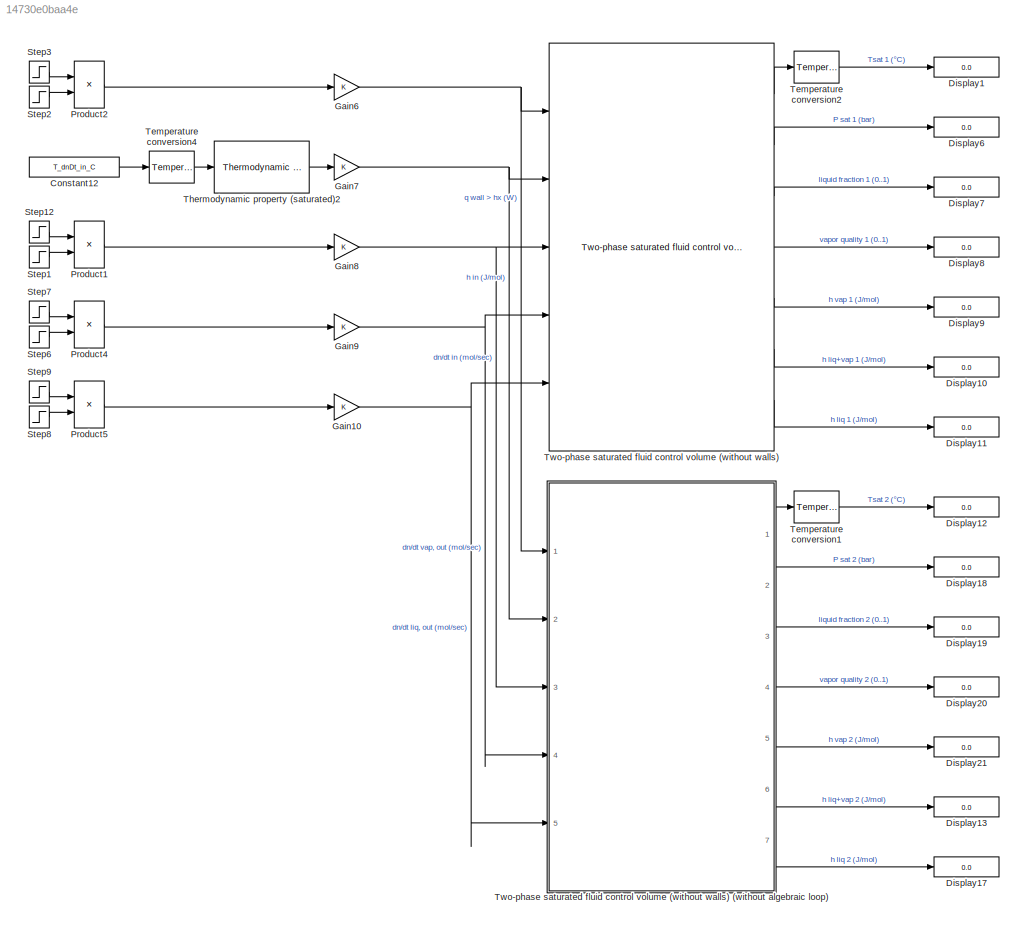
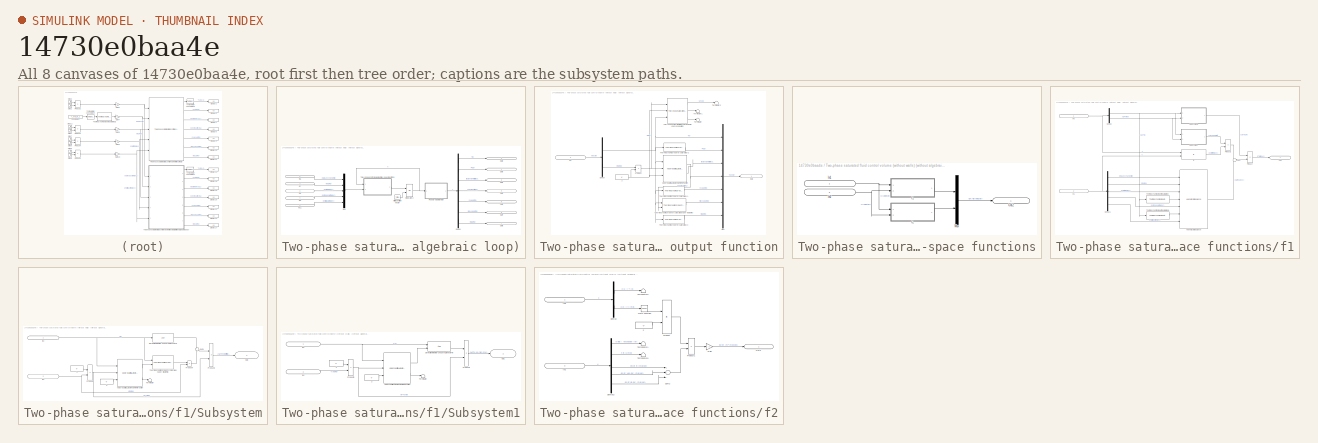
[diagram: thumbnail index - all 8 canvases of the model, root first then tree order]
MODEL slx_14730e0baa4e
KIND model
CONFIG AbsTol = auto
CONFIG EnableMultiTasking = off
CONFIG FixedStep = auto
CONFIG MaxStep = 0.1
CONFIG MinStep = auto
CONFIG RelTol = 5e-6
CONFIG SampleTimeConstraint = Unconstrained
CONFIG Solver = ode23tb
CONFIG SolverName = ode23tb
CONFIG StartTime = 0.0
CONFIG StopTime = tEndSimul
BLOCK [Constant] Constant12
  Value = T_dnDt_in_C
BLOCK [Display] Display1
  Decimation = 1
  Ports = [1]
BLOCK [Display] Display10
  Decimation = 1
  Ports = [1]
BLOCK [Display] Display11
  Decimation = 1
  Ports = [1]
BLOCK [Display] Display12
  Decimation = 1
  Ports = [1]
BLOCK [Display] Display13
  Decimation = 1
  Ports = [1]
BLOCK [Display] Display17
  Decimation = 1
  Ports = [1]
BLOCK [Display] Display18
  Decimation = 1
  Ports = [1]
BLOCK [Display] Display19
  Decimation = 1
  Ports = [1]
BLOCK [Display] Display20
  Decimation = 1
  Ports = [1]
BLOCK [Display] Display21
  Decimation = 1
  Ports = [1]
BLOCK [Display] Display6
  Decimation = 1
  Ports = [1]
BLOCK [Display] Display7
  Decimation = 1
  Ports = [1]
BLOCK [Display] Display8
  Decimation = 1
  Ports = [1]
BLOCK [Display] Display9
  Decimation = 1
  Ports = [1]
BLOCK [Gain] Gain10
  OutDataTypeStr = Inherit: Inherit via internal rule
  ParamDataTypeStr = Inherit: Inherit via internal rule
  SaturateOnIntegerOverflow = off
BLOCK [Gain] Gain6
  OutDataTypeStr = Inherit: Inherit via internal rule
  ParamDataTypeStr = Inherit: Inherit via internal rule
  SaturateOnIntegerOverflow = off
BLOCK [Gain] Gain7
  OutDataTypeStr = Inherit: Inherit via internal rule
  ParamDataTypeStr = Inherit: Inherit via internal rule
  SaturateOnIntegerOverflow = off
BLOCK [Gain] Gain8
  OutDataTypeStr = Inherit: Inherit via internal rule
  ParamDataTypeStr = Inherit: Inherit via internal rule
  SaturateOnIntegerOverflow = off
BLOCK [Gain] Gain9
  OutDataTypeStr = Inherit: Inherit via internal rule
  ParamDataTypeStr = Inherit: Inherit via internal rule
  SaturateOnIntegerOverflow = off
BLOCK [Product] Product1
  InputSameDT = off
  OutDataTypeStr = Inherit: Inherit via internal rule
  Ports = [2, 1]
  RndMeth = Floor
  SaturateOnIntegerOverflow = off
BLOCK [Product] Product2
  InputSameDT = off
  OutDataTypeStr = Inherit: Inherit via internal rule
  Ports = [2, 1]
  RndMeth = Floor
  SaturateOnIntegerOverflow = off
BLOCK [Product] Product4
  InputSameDT = off
  OutDataTypeStr = Inherit: Inherit via internal rule
  Ports = [2, 1]
  RndMeth = Floor
  SaturateOnIntegerOverflow = off
BLOCK [Product] Product5
  InputSameDT = off
  OutDataTypeStr = Inherit: Inherit via internal rule
  Ports = [2, 1]
  RndMeth = Floor
  SaturateOnIntegerOverflow = off
BLOCK [Step] Step1
  After = 0
  Before = 1
  SampleTime = 0
  Time = tEnd_dnDt_in
BLOCK [Step] Step12
  After = dnDt_in
  SampleTime = 0
  Time = tStart_dnDt_in
BLOCK [Step] Step2
  After = 0
  Before = 1
  SampleTime = 0
  Time = tEnd_q
BLOCK [Step] Step3
  After = q
  SampleTime = 0
  Time = tStart_q
BLOCK [Step] Step6
  After = 0
  Before = 1
  SampleTime = 0
  Time = tEnd_dnDt_out_vap
BLOCK [Step] Step7
  After = dnDt_out_vap
  SampleTime = 0
  Time = tStart_dnDt_out_vap
BLOCK [Step] Step8
  After = 0
  Before = 1
  SampleTime = 0
  Time = tEnd_dnDt_out_liq
BLOCK [Step] Step9
  After = dnDt_out_liq
  SampleTime = 0
  Time = tStart_dnDt_out_liq
BLOCK [Reference] Temperature conversion1  REF=thermochemical/Conversions/Temperature  (lib defined in slx_f9e0643dc704)
conversion
  Ports = [1, 1]
  SourceBlock = thermochemical/Conversions/Temperature\nconversion
  SourceProductName = @ Thermochemical
  SourceType = convert_temperature
BLOCK [Reference] Temperature conversion2  REF=thermochemical/Conversions/Temperature  (lib defined in slx_f9e0643dc704)
conversion
  Ports = [1, 1]
  SourceBlock = thermochemical/Conversions/Temperature\nconversion
  SourceProductName = @ Thermochemical
  SourceType = convert_temperature
BLOCK [Reference] Temperature conversion4  REF=thermochemical/Conversions/Temperature  (lib defined in slx_f9e0643dc704)
conversion
  Ports = [1, 1]
  SourceBlock = thermochemical/Conversions/Temperature\nconversion
  SourceProductName = @ Thermochemical
  SourceType = convert_temperature
BLOCK [Reference] Thermodynamic property (saturated)2  REF=thermochemical/Thermodynamic fluid properties/Thermodynamic   (lib defined in slx_f9e0643dc704)
property (saturated)
  Ports = [1, 1]
  SourceBlock = thermochemical/Thermodynamic fluid properties/Thermodynamic \nproperty (saturated)
  SourceProductName = @ Thermochemical
  SourceType = thermodynamic_properties_saturated
BLOCK [Reference] Two-phase saturated fluid control volume (without walls)  REF=thermochemical/Control volumes/Two-phase saturated fluid  (lib defined in slx_f9e0643dc704)
control volume (without walls)
  Ports = [5, 7]
  SourceBlock = thermochemical/Control volumes/Two-phase saturated fluid\ncontrol volume (without walls)
  SourceProductName = @ Thermochemical
  SourceType = volume_control_saturated
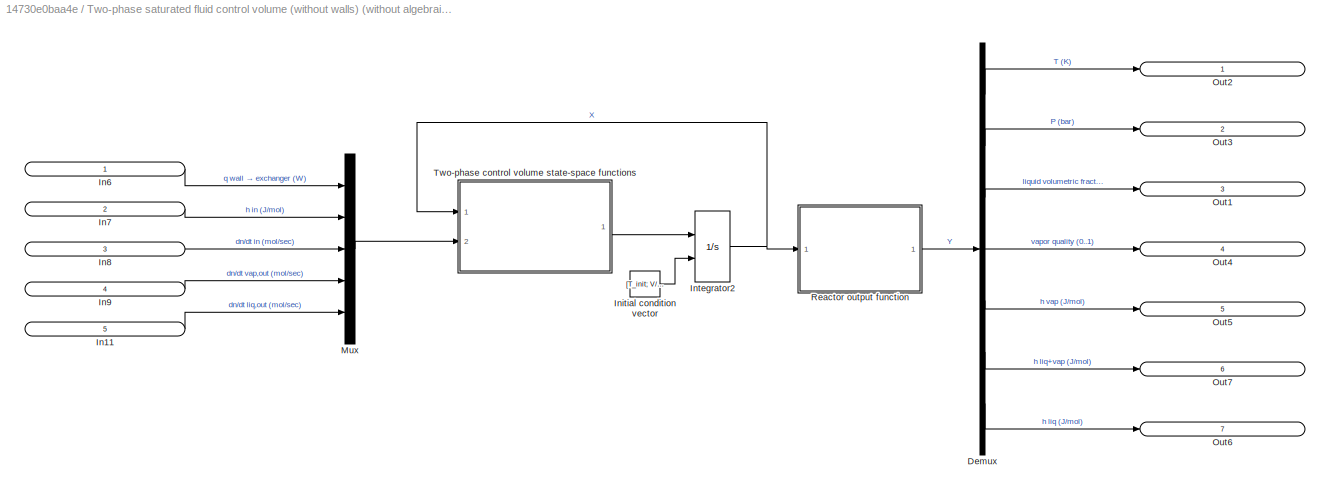
BLOCK [SubSystem] Two-phase saturated fluid control volume (without walls) (without algebraic loop)
  AncestorBlock = thermochemical/Control volumes/Two-phase saturated fluid\ncontrol volume (without walls)\n(without algebraic loop)
  Ports = [5, 7]
  RequestExecContextInheritance = off
  Variant = off
BLOCK [Demux] Two-phase saturated fluid control volume (without walls) (without algebraic loop)/Demux
  DisplayOption = bar
  Outputs = 7
  Ports = [1, 7]
BLOCK [Inport] Two-phase saturated fluid control volume (without walls) (without algebraic loop)/In11
  IconDisplay = Signal name
  Port = 5
BLOCK [Inport] Two-phase saturated fluid control volume (without walls) (without algebraic loop)/In6
  IconDisplay = Signal name
BLOCK [Inport] Two-phase saturated fluid control volume (without walls) (without algebraic loop)/In7
  IconDisplay = Signal name
  Port = 2
BLOCK [Inport] Two-phase saturated fluid control volume (without walls) (without algebraic loop)/In8
  IconDisplay = Signal name
  Port = 3
BLOCK [Inport] Two-phase saturated fluid control volume (without walls) (without algebraic loop)/In9
  IconDisplay = Signal name
  Port = 4
BLOCK [Constant] Two-phase saturated fluid control volume (without walls) (without algebraic loop)/Initial condition vector
  Value = [T_init; V/N_init]
BLOCK [Integrator] Two-phase saturated fluid control volume (without walls) (without algebraic loop)/Integrator2
  InitialConditionSource = external
  Ports = [2, 1]
BLOCK [Mux] Two-phase saturated fluid control volume (without walls) (without algebraic loop)/Mux
  DisplayOption = bar
  Inputs = 5
  Ports = [5, 1]
BLOCK [Outport] Two-phase saturated fluid control volume (without walls) (without algebraic loop)/Out1
  IconDisplay = Signal name
  Port = 3
BLOCK [Outport] Two-phase saturated fluid control volume (without walls) (without algebraic loop)/Out2
  IconDisplay = Signal name
BLOCK [Outport] Two-phase saturated fluid control volume (without walls) (without algebraic loop)/Out3
  IconDisplay = Signal name
  Port = 2
BLOCK [Outport] Two-phase saturated fluid control volume (without walls) (without algebraic loop)/Out4
  IconDisplay = Signal name
  Port = 4
BLOCK [Outport] Two-phase saturated fluid control volume (without walls) (without algebraic loop)/Out5
  IconDisplay = Signal name
  Port = 5
BLOCK [Outport] Two-phase saturated fluid control volume (without walls) (without algebraic loop)/Out6
  IconDisplay = Signal name
  Port = 7
BLOCK [Outport] Two-phase saturated fluid control volume (without walls) (without algebraic loop)/Out7
  IconDisplay = Signal name
  Port = 6
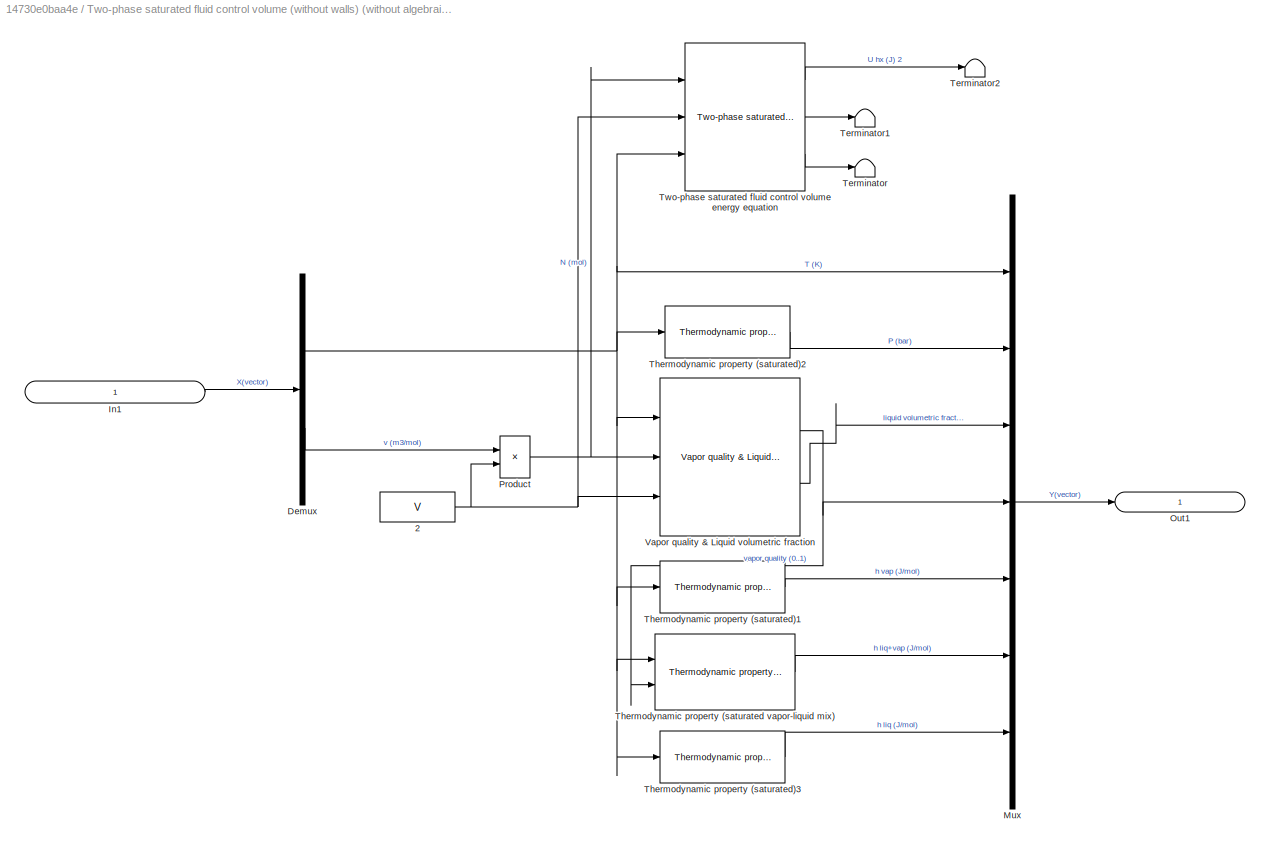
BLOCK [SubSystem] Two-phase saturated fluid control volume (without walls) (without algebraic loop)/Reactor output function
  Ports = [1, 1]
  RequestExecContextInheritance = off
  Variant = off
BLOCK [Constant] Two-phase saturated fluid control volume (without walls) (without algebraic loop)/Reactor output function/2
  Value = V
BLOCK [Demux] Two-phase saturated fluid control volume (without walls) (without algebraic loop)/Reactor output function/Demux
  DisplayOption = bar
  Outputs = 2
  Ports = [1, 2]
BLOCK [Inport] Two-phase saturated fluid control volume (without walls) (without algebraic loop)/Reactor output function/In1
  IconDisplay = Signal name
BLOCK [Mux] Two-phase saturated fluid control volume (without walls) (without algebraic loop)/Reactor output function/Mux
  DisplayOption = bar
  Inputs = 7
  Ports = [7, 1]
BLOCK [Outport] Two-phase saturated fluid control volume (without walls) (without algebraic loop)/Reactor output function/Out1
  IconDisplay = Signal name
BLOCK [Product] Two-phase saturated fluid control volume (without walls) (without algebraic loop)/Reactor output function/Product
  InputSameDT = off
  Inputs = /*
  OutDataTypeStr = Inherit: Inherit via internal rule
  Ports = [2, 1]
  RndMeth = Floor
  SaturateOnIntegerOverflow = off
BLOCK [Terminator] Two-phase saturated fluid control volume (without walls) (without algebraic loop)/Reactor output function/Terminator
BLOCK [Terminator] Two-phase saturated fluid control volume (without walls) (without algebraic loop)/Reactor output function/Terminator1
BLOCK [Terminator] Two-phase saturated fluid control volume (without walls) (without algebraic loop)/Reactor output function/Terminator2
BLOCK [Reference] Two-phase saturated fluid control volume (without walls) (without algebraic loop)/Reactor output function/Thermodynamic property (saturated vapor-liquid mix)  REF=thermochemical/Thermodynamic fluid properties/Thermodynamic property   (lib defined in slx_f9e0643dc704)
(saturated vapor-liquid mix)
  Ports = [2, 1]
  SourceBlock = thermochemical/Thermodynamic fluid properties/Thermodynamic property \n(saturated vapor-liquid mix)
  SourceProductName = @ Thermochemical
  SourceType = thermodynamic_properties_saturated_mix
BLOCK [Reference] Two-phase saturated fluid control volume (without walls) (without algebraic loop)/Reactor output function/Thermodynamic property (saturated)1  REF=thermochemical/Thermodynamic fluid properties/Thermodynamic   (lib defined in slx_f9e0643dc704)
property (saturated)
  Ports = [1, 1]
  SourceBlock = thermochemical/Thermodynamic fluid properties/Thermodynamic \nproperty (saturated)
  SourceProductName = @ Thermochemical
  SourceType = thermodynamic_properties_saturated
BLOCK [Reference] Two-phase saturated fluid control volume (without walls) (without algebraic loop)/Reactor output function/Thermodynamic property (saturated)2  REF=thermochemical/Thermodynamic fluid properties/Thermodynamic   (lib defined in slx_f9e0643dc704)
property (saturated)
  Ports = [1, 1]
  SourceBlock = thermochemical/Thermodynamic fluid properties/Thermodynamic \nproperty (saturated)
  SourceProductName = @ Thermochemical
  SourceType = thermodynamic_properties_saturated
BLOCK [Reference] Two-phase saturated fluid control volume (without walls) (without algebraic loop)/Reactor output function/Thermodynamic property (saturated)3  REF=thermochemical/Thermodynamic fluid properties/Thermodynamic   (lib defined in slx_f9e0643dc704)
property (saturated)
  Ports = [1, 1]
  SourceBlock = thermochemical/Thermodynamic fluid properties/Thermodynamic \nproperty (saturated)
  SourceProductName = @ Thermochemical
  SourceType = thermodynamic_properties_saturated
BLOCK [Reference] Two-phase saturated fluid control volume (without walls) (without algebraic loop)/Reactor output function/Two-phase saturated fluid control volume energy equation  REF=thermochemical/Control volumes/Two-phase saturated fluid  (lib defined in slx_f9e0643dc704)
control volume energy equation
  Ports = [3, 3]
  SourceBlock = thermochemical/Control volumes/Two-phase saturated fluid\ncontrol volume energy equation
  SourceProductName = @ Thermochemical
  SourceType = control_volume_energy_equation
BLOCK [Reference] Two-phase saturated fluid control volume (without walls) (without algebraic loop)/Reactor output function/Vapor quality & Liquid volumetric fraction  REF=thermochemical/Thermodynamic fluid properties/Vapor quality & Liquid   (lib defined in slx_f9e0643dc704)
volumetric fraction
  Ports = [3, 2]
  SourceBlock = thermochemical/Thermodynamic fluid properties/Vapor quality & Liquid \nvolumetric fraction
  SourceProductName = @ Thermochemical
BLOCK [SubSystem] Two-phase saturated fluid control volume (without walls) (without algebraic loop)/Two-phase control volume state-space functions
  Ports = [2, 1]
  RequestExecContextInheritance = off
  Variant = off
BLOCK [Inport] Two-phase saturated fluid control volume (without walls) (without algebraic loop)/Two-phase control volume state-space functions/In1
  IconDisplay = Signal name
BLOCK [Inport] Two-phase saturated fluid control volume (without walls) (without algebraic loop)/Two-phase control volume state-space functions/In2
  IconDisplay = Signal name
  Port = 2
BLOCK [Mux] Two-phase saturated fluid control volume (without walls) (without algebraic loop)/Two-phase control volume state-space functions/Mux
  DisplayOption = bar
  Inputs = 2
  Ports = [2, 1]
BLOCK [Outport] Two-phase saturated fluid control volume (without walls) (without algebraic loop)/Two-phase control volume state-space functions/Out2
  IconDisplay = Signal name
BLOCK [SubSystem] Two-phase saturated fluid control volume (without walls) (without algebraic loop)/Two-phase control volume state-space functions/f1
  Ports = [2, 1]
  RequestExecContextInheritance = off
  Variant = off
BLOCK [Demux] Two-phase saturated fluid control volume (without walls) (without algebraic loop)/Two-phase control volume state-space functions/f1/Demux
  DisplayOption = bar
  Outputs = 2
  Ports = [1, 2]
BLOCK [Demux] Two-phase saturated fluid control volume (without walls) (without algebraic loop)/Two-phase control volume state-space functions/f1/Demux1
  DisplayOption = bar
  Outputs = 5
  Ports = [1, 5]
BLOCK [Reference] Two-phase saturated fluid control volume (without walls) (without algebraic loop)/Two-phase control volume state-space functions/f1/HX energy rate balance  REF=thermochemical/Control volumes/Two-phase saturated fluid  (lib defined in slx_f9e0643dc704)
control volume (without walls)/Internal energy differential equation/HX energy rate balance
  Ports = [7, 1]
  SourceBlock = thermochemical/Control volumes/Two-phase saturated fluid\ncontrol volume (without walls)/Internal energy differential equation/HX energy rate balance
  SourceProductName = @ Thermochemical
  SourceType = SubSystem
BLOCK [Inport] Two-phase saturated fluid control volume (without walls) (without algebraic loop)/Two-phase control volume state-space functions/f1/In1
  IconDisplay = Signal name
  Port = 2
BLOCK [Inport] Two-phase saturated fluid control volume (without walls) (without algebraic loop)/Two-phase control volume state-space functions/f1/In6
  IconDisplay = Signal name
BLOCK [Outport] Two-phase saturated fluid control volume (without walls) (without algebraic loop)/Two-phase control volume state-space functions/f1/Out2
  IconDisplay = Signal name
BLOCK [Product] Two-phase saturated fluid control volume (without walls) (without algebraic loop)/Two-phase control volume state-space functions/f1/Product
  InputSameDT = off
  Inputs = /*
  OutDataTypeStr = Inherit: Inherit via internal rule
  Ports = [2, 1]
  RndMeth = Floor
  SaturateOnIntegerOverflow = off
BLOCK [Product] Two-phase saturated fluid control volume (without walls) (without algebraic loop)/Two-phase control volume state-space functions/f1/Product1
  InputSameDT = off
  Inputs = **
  OutDataTypeStr = Inherit: Inherit via internal rule
  Ports = [2, 1]
  RndMeth = Floor
  SaturateOnIntegerOverflow = off
BLOCK [SubSystem] Two-phase saturated fluid control volume (without walls) (without algebraic loop)/Two-phase control volume state-space functions/f1/Subsystem
  Ports = [2, 1]
  RequestExecContextInheritance = off
  Variant = off
BLOCK [Constant] Two-phase saturated fluid control volume (without walls) (without algebraic loop)/Two-phase control volume state-space functions/f1/Subsystem/2
  Value = V
BLOCK [Constant] Two-phase saturated fluid control volume (without walls) (without algebraic loop)/Two-phase control volume state-space functions/f1/Subsystem/3
  Value = V
BLOCK [Reference] Two-phase saturated fluid control volume (without walls) (without algebraic loop)/Two-phase control volume state-space functions/f1/Subsystem/Derivative in the two-phase region ∂u//∂v|T  REF=thermochemical/Thermodynamic fluid properties/Derivative in the two-phase region  (lib defined in slx_f9e0643dc704)
∂u//∂v|T
  Ports = [1, 1]
  SourceBlock = thermochemical/Thermodynamic fluid properties/Derivative in the two-phase region\n∂u//∂v|T
  SourceProductName = @ Thermochemical
BLOCK [Inport] Two-phase saturated fluid control volume (without walls) (without algebraic loop)/Two-phase control volume state-space functions/f1/Subsystem/In2
  IconDisplay = Signal name
BLOCK [Inport] Two-phase saturated fluid control volume (without walls) (without algebraic loop)/Two-phase control volume state-space functions/f1/Subsystem/In3
  IconDisplay = Signal name
  Port = 2
BLOCK [Outport] Two-phase saturated fluid control volume (without walls) (without algebraic loop)/Two-phase control volume state-space functions/f1/Subsystem/Out1
  IconDisplay = Signal name
BLOCK [Product] Two-phase saturated fluid control volume (without walls) (without algebraic loop)/Two-phase control volume state-space functions/f1/Subsystem/Product3
  InputSameDT = off
  Inputs = **
  OutDataTypeStr = Inherit: Inherit via internal rule
  Ports = [2, 1]
  RndMeth = Floor
  SaturateOnIntegerOverflow = off
BLOCK [Product] Two-phase saturated fluid control volume (without walls) (without algebraic loop)/Two-phase control volume state-space functions/f1/Subsystem/Product4
  InputSameDT = off
  Inputs = */
  OutDataTypeStr = Inherit: Inherit via internal rule
  Ports = [2, 1]
  RndMeth = Floor
  SaturateOnIntegerOverflow = off
BLOCK [Product] Two-phase saturated fluid control volume (without walls) (without algebraic loop)/Two-phase control volume state-space functions/f1/Subsystem/Product5
  InputSameDT = off
  Inputs = */
  OutDataTypeStr = Inherit: Inherit via internal rule
  Ports = [2, 1]
  RndMeth = Floor
  SaturateOnIntegerOverflow = off
BLOCK [Sum] Two-phase saturated fluid control volume (without walls) (without algebraic loop)/Two-phase control volume state-space functions/f1/Subsystem/Sum1
  IconShape = round
  InputSameDT = off
  Inputs = +-
  OutDataTypeStr = Inherit: Inherit via internal rule
  Ports = [2, 1]
  SaturateOnIntegerOverflow = off
BLOCK [Terminator] Two-phase saturated fluid control volume (without walls) (without algebraic loop)/Two-phase control volume state-space functions/f1/Subsystem/Terminator
BLOCK [Reference] Two-phase saturated fluid control volume (without walls) (without algebraic loop)/Two-phase control volume state-space functions/f1/Subsystem/Thermodynamic property (saturated vapor-liquid mix)  REF=thermochemical/Thermodynamic fluid properties/Thermodynamic property   (lib defined in slx_f9e0643dc704)
(saturated vapor-liquid mix)
  Ports = [2, 1]
  SourceBlock = thermochemical/Thermodynamic fluid properties/Thermodynamic property \n(saturated vapor-liquid mix)
  SourceProductName = @ Thermochemical
  SourceType = thermodynamic_properties_saturated_mix
BLOCK [Reference] Two-phase saturated fluid control volume (without walls) (without algebraic loop)/Two-phase control volume state-space functions/f1/Subsystem/Vapor quality & Liquid volumetric fraction  REF=thermochemical/Thermodynamic fluid properties/Vapor quality & Liquid   (lib defined in slx_f9e0643dc704)
volumetric fraction
  Ports = [3, 2]
  SourceBlock = thermochemical/Thermodynamic fluid properties/Vapor quality & Liquid \nvolumetric fraction
  SourceProductName = @ Thermochemical
BLOCK [SubSystem] Two-phase saturated fluid control volume (without walls) (without algebraic loop)/Two-phase control volume state-space functions/f1/Subsystem1
  Ports = [2, 1]
  RequestExecContextInheritance = off
  Variant = off
BLOCK [Constant] Two-phase saturated fluid control volume (without walls) (without algebraic loop)/Two-phase control volume state-space functions/f1/Subsystem1/2
  Value = V
BLOCK [Constant] Two-phase saturated fluid control volume (without walls) (without algebraic loop)/Two-phase control volume state-space functions/f1/Subsystem1/3
  Value = V
BLOCK [Reference] Two-phase saturated fluid control volume (without walls) (without algebraic loop)/Two-phase control volume state-space functions/f1/Subsystem1/Derivative in the two-phase region ∂u//∂T|v  REF=thermochemical/Thermodynamic fluid properties/Derivative in the two-phase region  (lib defined in slx_f9e0643dc704)
∂u//∂T|v
  Ports = [2, 1]
  SourceBlock = thermochemical/Thermodynamic fluid properties/Derivative in the two-phase region\n∂u//∂T|v
  SourceProductName = @ Thermochemical
BLOCK [Inport] Two-phase saturated fluid control volume (without walls) (without algebraic loop)/Two-phase control volume state-space functions/f1/Subsystem1/In2
  IconDisplay = Signal name
BLOCK [Inport] Two-phase saturated fluid control volume (without walls) (without algebraic loop)/Two-phase control volume state-space functions/f1/Subsystem1/In3
  IconDisplay = Signal name
  Port = 2
BLOCK [Outport] Two-phase saturated fluid control volume (without walls) (without algebraic loop)/Two-phase control volume state-space functions/f1/Subsystem1/Out1
  IconDisplay = Signal name
BLOCK [Product] Two-phase saturated fluid control volume (without walls) (without algebraic loop)/Two-phase control volume state-space functions/f1/Subsystem1/Product3
  InputSameDT = off
  Inputs = **
  OutDataTypeStr = Inherit: Inherit via internal rule
  Ports = [2, 1]
  RndMeth = Floor
  SaturateOnIntegerOverflow = off
BLOCK [Product] Two-phase saturated fluid control volume (without walls) (without algebraic loop)/Two-phase control volume state-space functions/f1/Subsystem1/Product5
  InputSameDT = off
  Inputs = */
  OutDataTypeStr = Inherit: Inherit via internal rule
  Ports = [2, 1]
  RndMeth = Floor
  SaturateOnIntegerOverflow = off
BLOCK [Terminator] Two-phase saturated fluid control volume (without walls) (without algebraic loop)/Two-phase control volume state-space functions/f1/Subsystem1/Terminator
BLOCK [Reference] Two-phase saturated fluid control volume (without walls) (without algebraic loop)/Two-phase control volume state-space functions/f1/Subsystem1/Vapor quality & Liquid volumetric fraction  REF=thermochemical/Thermodynamic fluid properties/Vapor quality & Liquid   (lib defined in slx_f9e0643dc704)
volumetric fraction
  Ports = [3, 2]
  SourceBlock = thermochemical/Thermodynamic fluid properties/Vapor quality & Liquid \nvolumetric fraction
  SourceProductName = @ Thermochemical
BLOCK [Sum] Two-phase saturated fluid control volume (without walls) (without algebraic loop)/Two-phase control volume state-space functions/f1/Sum
  IconShape = round
  InputSameDT = off
  Inputs = -+
  OutDataTypeStr = Inherit: Inherit via internal rule
  Ports = [2, 1]
  SaturateOnIntegerOverflow = off
BLOCK [Reference] Two-phase saturated fluid control volume (without walls) (without algebraic loop)/Two-phase control volume state-space functions/f1/Thermodynamic property (saturated)  REF=thermochemical/Thermodynamic fluid properties/Thermodynamic   (lib defined in slx_f9e0643dc704)
property (saturated)
  Ports = [1, 1]
  SourceBlock = thermochemical/Thermodynamic fluid properties/Thermodynamic \nproperty (saturated)
  SourceProductName = @ Thermochemical
  SourceType = thermodynamic_properties_saturated
BLOCK [Reference] Two-phase saturated fluid control volume (without walls) (without algebraic loop)/Two-phase control volume state-space functions/f1/Thermodynamic property (saturated)1  REF=thermochemical/Thermodynamic fluid properties/Thermodynamic   (lib defined in slx_f9e0643dc704)
property (saturated)
  Ports = [1, 1]
  SourceBlock = thermochemical/Thermodynamic fluid properties/Thermodynamic \nproperty (saturated)
  SourceProductName = @ Thermochemical
  SourceType = thermodynamic_properties_saturated
BLOCK [Reference] Two-phase saturated fluid control volume (without walls) (without algebraic loop)/Two-phase control volume state-space functions/f1/f2  REF=thermochemical/Control volumes/Two-phase saturated fluid  (lib defined in slx_f9e0643dc704)
control volume (without walls)
(without algebraic loop)/Two-phase control volume
state-space functions/f2
  Ports = [2, 1]
  SourceBlock = thermochemical/Control volumes/Two-phase saturated fluid\ncontrol volume (without walls)\n(without algebraic loop)/Two-phase control volume\nstate-space functions/f2
  SourceProductName = @ Thermochemical
  SourceType = SubSystem
BLOCK [SubSystem] Two-phase saturated fluid control volume (without walls) (without algebraic loop)/Two-phase control volume state-space functions/f2
  Ports = [2, 1]
  RequestExecContextInheritance = off
  Variant = off
BLOCK [Constant] Two-phase saturated fluid control volume (without walls) (without algebraic loop)/Two-phase control volume state-space functions/f2/2
  Value = V
BLOCK [Demux] Two-phase saturated fluid control volume (without walls) (without algebraic loop)/Two-phase control volume state-space functions/f2/Demux
  DisplayOption = bar
  Outputs = 2
  Ports = [1, 2]
BLOCK [Demux] Two-phase saturated fluid control volume (without walls) (without algebraic loop)/Two-phase control volume state-space functions/f2/Demux2
  DisplayOption = bar
  Outputs = 5
  Ports = [1, 5]
BLOCK [Gain] Two-phase saturated fluid control volume (without walls) (without algebraic loop)/Two-phase control volume state-space functions/f2/Gain
  Gain = -1
  OutDataTypeStr = Inherit: Inherit via internal rule
  ParamDataTypeStr = Inherit: Inherit via internal rule
  SaturateOnIntegerOverflow = off
BLOCK [Inport] Two-phase saturated fluid control volume (without walls) (without algebraic loop)/Two-phase control volume state-space functions/f2/In2
  IconDisplay = Signal name
  Port = 2
BLOCK [Inport] Two-phase saturated fluid control volume (without walls) (without algebraic loop)/Two-phase control volume state-space functions/f2/In6
  IconDisplay = Signal name
BLOCK [Math] Two-phase saturated fluid control volume (without walls) (without algebraic loop)/Two-phase control volume state-space functions/f2/Math Function
  Operator = square
  Ports = [1, 1]
BLOCK [Outport] Two-phase saturated fluid control volume (without walls) (without algebraic loop)/Two-phase control volume state-space functions/f2/Out2
  IconDisplay = Signal name
BLOCK [Product] Two-phase saturated fluid control volume (without walls) (without algebraic loop)/Two-phase control volume state-space functions/f2/Product
  InputSameDT = off
  Inputs = */
  OutDataTypeStr = Inherit: Inherit via internal rule
  Ports = [2, 1]
  RndMeth = Floor
  SaturateOnIntegerOverflow = off
BLOCK [Product] Two-phase saturated fluid control volume (without walls) (without algebraic loop)/Two-phase control volume state-space functions/f2/Product1
  InputSameDT = off
  Inputs = **
  OutDataTypeStr = Inherit: Inherit via internal rule
  Ports = [2, 1]
  RndMeth = Floor
  SaturateOnIntegerOverflow = off
BLOCK [Sum] Two-phase saturated fluid control volume (without walls) (without algebraic loop)/Two-phase control volume state-space functions/f2/Sum2
  InputSameDT = off
  Inputs = +--
  OutDataTypeStr = Inherit: Inherit via internal rule
  Ports = [3, 1]
  SaturateOnIntegerOverflow = off
BLOCK [Terminator] Two-phase saturated fluid control volume (without walls) (without algebraic loop)/Two-phase control volume state-space functions/f2/Terminator1
BLOCK [Terminator] Two-phase saturated fluid control volume (without walls) (without algebraic loop)/Two-phase control volume state-space functions/f2/Terminator5
BLOCK [Terminator] Two-phase saturated fluid control volume (without walls) (without algebraic loop)/Two-phase control volume state-space functions/f2/Terminator6
LINE Constant12:1 -> Temperature conversion4:1
NET Gain10:1 -> Two-phase saturated fluid control volume (without walls) (without algebraic loop):5, Two-phase saturated fluid control volume (without walls):5
NET Gain6:1 -> Two-phase saturated fluid control volume (without walls) (without algebraic loop):1, Two-phase saturated fluid control volume (without walls):1
NET Gain7:1 -> Two-phase saturated fluid control volume (without walls) (without algebraic loop):2, Two-phase saturated fluid control volume (without walls):2
NET Gain8:1 -> Two-phase saturated fluid control volume (without walls) (without algebraic loop):3, Two-phase saturated fluid control volume (without walls):3
NET Gain9:1 -> Two-phase saturated fluid control volume (without walls) (without algebraic loop):4, Two-phase saturated fluid control volume (without walls):4
LINE Product1:1 -> Gain8:1
LINE Product2:1 -> Gain6:1
LINE Product4:1 -> Gain9:1
LINE Product5:1 -> Gain10:1
LINE Step12:1 -> Product1:1
LINE Step1:1 -> Product1:2
LINE Step2:1 -> Product2:2
LINE Step3:1 -> Product2:1
LINE Step6:1 -> Product4:2
LINE Step7:1 -> Product4:1
LINE Step8:1 -> Product5:2
LINE Step9:1 -> Product5:1
LINE Temperature conversion1:1 -> Display12:1
LINE Temperature conversion2:1 -> Display1:1
LINE Temperature conversion4:1 -> Thermodynamic property (saturated)2:1
LINE Thermodynamic property (saturated)2:1 -> Gain7:1
LINE Two-phase saturated fluid control volume (without walls) (without algebraic loop):1 -> Temperature conversion1:1
LINE Two-phase saturated fluid control volume (without walls) (without algebraic loop):2 -> Display18:1
LINE Two-phase saturated fluid control volume (without walls) (without algebraic loop):3 -> Display19:1
LINE Two-phase saturated fluid control volume (without walls) (without algebraic loop):4 -> Display20:1
LINE Two-phase saturated fluid control volume (without walls) (without algebraic loop):5 -> Display21:1
LINE Two-phase saturated fluid control volume (without walls) (without algebraic loop):6 -> Display13:1
LINE Two-phase saturated fluid control volume (without walls) (without algebraic loop):7 -> Display17:1
LINE Two-phase saturated fluid control volume (without walls):1 -> Temperature conversion2:1
LINE Two-phase saturated fluid control volume (without walls):2 -> Display6:1
LINE Two-phase saturated fluid control volume (without walls):3 -> Display7:1
LINE Two-phase saturated fluid control volume (without walls):4 -> Display8:1
LINE Two-phase saturated fluid control volume (without walls):5 -> Display9:1
LINE Two-phase saturated fluid control volume (without walls):6 -> Display10:1
LINE Two-phase saturated fluid control volume (without walls):7 -> Display11:1
note: NET lines group one-source signal fan-out (src -> all destinations, sorted); 1:1 wires keep LINE
